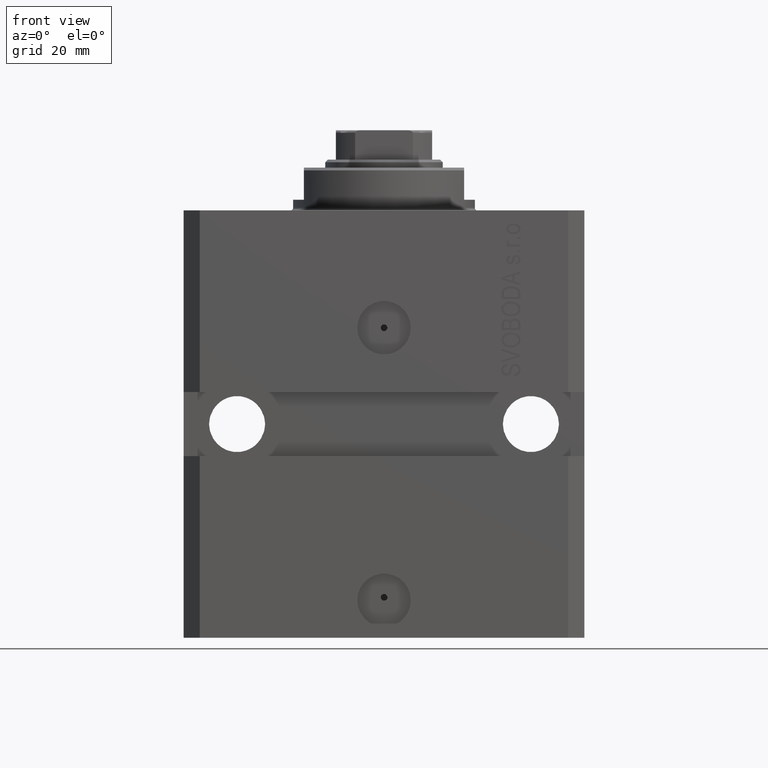
[diagram: clean part render]
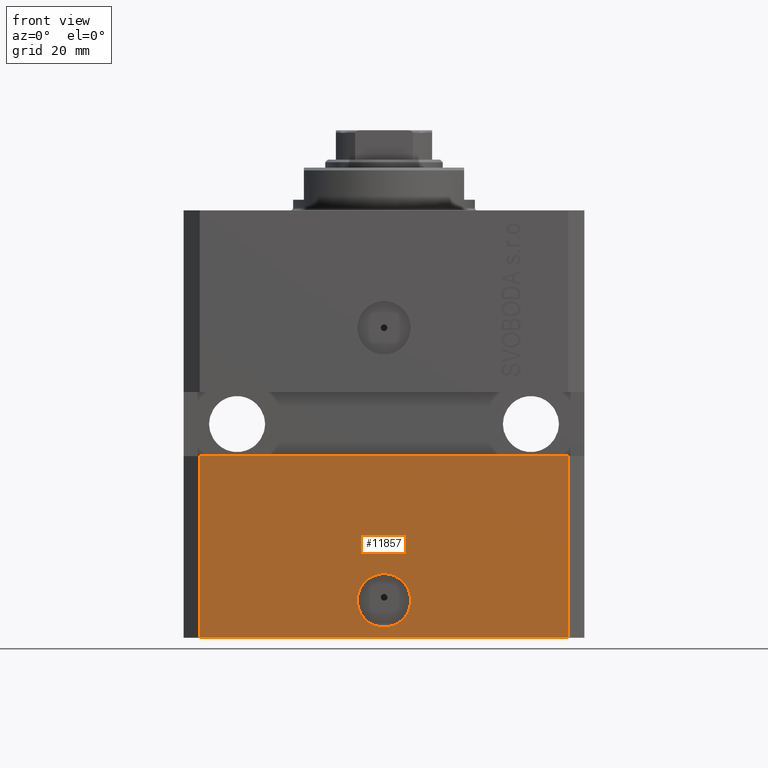
[diagram: same view with one face highlighted and labeled with its STEP entity id]
A machine part, front view. The second image highlights one B-rep face of the part: STEP entity #11857.
In plain terms, the highlighted planar face has unit normal (0, -1, 0).
Its self-contained STEP definition (entity closure, byte-faithful):
#287 = AXIS2_PLACEMENT_3D ( 'NONE', #23470, #2372, #5921 ) ;
#558 = EDGE_LOOP ( 'NONE', ( #33598, #41364, #21478, #35118 ) ) ;
#1639 = LINE ( 'NONE', #15839, #40513 ) ;
#2372 = DIRECTION ( 'NONE',  ( 1.176083712526788232E-16, -1.000000000000000000, 0.000000000000000000 ) ) ;
#3290 = CIRCLE ( 'NONE', #287, 5.000000000000006217 ) ;
#3434 = VERTEX_POINT ( 'NONE', #37248 ) ;
#4259 = AXIS2_PLACEMENT_3D ( 'NONE', #29597, #32456, #36235 ) ;
#4391 = VECTOR ( 'NONE', #45858, 1000.000000000000000 ) ;
#5921 = DIRECTION ( 'NONE',  ( 1.000000000000000000, 0.000000000000000000, 0.000000000000000000 ) ) ;
#6768 = FACE_BOUND ( 'NONE', #24987, .T. ) ;
#9656 = EDGE_CURVE ( 'NONE', #3434, #11176, #3290, .T. ) ;
#11176 = VERTEX_POINT ( 'NONE', #27540 ) ;
#11857 = ADVANCED_FACE ( 'NONE', ( #6768, #36098 ), #24531, .T. ) ;
#12793 = VECTOR ( 'NONE', #19223, 1000.000000000000000 ) ;
#12830 = VECTOR ( 'NONE', #39491, 1000.000000000000000 ) ;
#13266 = VERTEX_POINT ( 'NONE', #32007 ) ;
#15601 = DIRECTION ( 'NONE',  ( 0.000000000000000000, 0.000000000000000000, 1.000000000000000000 ) ) ;
#15839 = CARTESIAN_POINT ( 'NONE',  ( 34.49999999999999289, -27.49999999999999645, -80.00000000000000000 ) ) ;
#16453 = EDGE_CURVE ( 'NONE', #11176, #3434, #42823, .T. ) ;
#16966 = LINE ( 'NONE', #31400, #4391 ) ;
#17348 = VERTEX_POINT ( 'NONE', #27985 ) ;
#17836 = CARTESIAN_POINT ( 'NONE',  ( 34.49999999999999289, -27.49999999999999289, -46.00000000000000000 ) ) ;
#18095 = CARTESIAN_POINT ( 'NONE',  ( -34.49999999999998579, -27.49999999999999645, -80.00000000000000000 ) ) ;
#18289 = LINE ( 'NONE', #22788, #12793 ) ;
#18744 = EDGE_CURVE ( 'NONE', #17348, #22376, #1639, .T. ) ;
#19223 = DIRECTION ( 'NONE',  ( 1.000000000000000000, 9.251858538542972814E-17, 0.000000000000000000 ) ) ;
#19378 = ORIENTED_EDGE ( 'NONE', *, *, #9656, .F. ) ;
#21276 = LINE ( 'NONE', #25305, #12830 ) ;
#21478 = ORIENTED_EDGE ( 'NONE', *, *, #24211, .T. ) ;
#21688 = DIRECTION ( 'NONE',  ( 0.000000000000000000, -1.000000000000000000, 0.000000000000000000 ) ) ;
#22376 = VERTEX_POINT ( 'NONE', #17836 ) ;
#22788 = CARTESIAN_POINT ( 'NONE',  ( -37.50000000000000000, -27.50000000000000000, -46.00000000000000000 ) ) ;
#23470 = CARTESIAN_POINT ( 'NONE',  ( 0.000000000000000000, -27.49999999999999645, -73.00000000000000000 ) ) ;
#24211 = EDGE_CURVE ( 'NONE', #43192, #17348, #16966, .T. ) ;
#24531 = PLANE ( 'NONE',  #32838 ) ;
#24987 = EDGE_LOOP ( 'NONE', ( #31498, #19378 ) ) ;
#25305 = CARTESIAN_POINT ( 'NONE',  ( -34.49999999999998579, -27.49999999999999645, -80.00000000000000000 ) ) ;
#27540 = CARTESIAN_POINT ( 'NONE',  ( 5.000000000000006217, -27.49999999999999645, -73.00000000000000000 ) ) ;
#27985 = CARTESIAN_POINT ( 'NONE',  ( 34.49999999999999289, -27.49999999999999645, -80.00000000000000000 ) ) ;
#28777 = CARTESIAN_POINT ( 'NONE',  ( -34.49999999999998579, -27.49999999999999645, -80.00000000000000000 ) ) ;
#29597 = CARTESIAN_POINT ( 'NONE',  ( 0.000000000000000000, -27.49999999999999645, -73.00000000000000000 ) ) ;
#31400 = CARTESIAN_POINT ( 'NONE',  ( -34.49999999999998579, -27.49999999999999645, -80.00000000000000000 ) ) ;
#31498 = ORIENTED_EDGE ( 'NONE', *, *, #16453, .F. ) ;
#32007 = CARTESIAN_POINT ( 'NONE',  ( -34.49999999999998579, -27.50000000000000000, -46.00000000000000000 ) ) ;
#32456 = DIRECTION ( 'NONE',  ( 1.176083712526788232E-16, -1.000000000000000000, 0.000000000000000000 ) ) ;
#32838 = AXIS2_PLACEMENT_3D ( 'NONE', #28777, #21688, #46779 ) ;
#33598 = ORIENTED_EDGE ( 'NONE', *, *, #38992, .F. ) ;
#35118 = ORIENTED_EDGE ( 'NONE', *, *, #18744, .T. ) ;
#36098 = FACE_OUTER_BOUND ( 'NONE', #558, .T. ) ;
#36235 = DIRECTION ( 'NONE',  ( 1.000000000000000000, 0.000000000000000000, 0.000000000000000000 ) ) ;
#37248 = CARTESIAN_POINT ( 'NONE',  ( -5.000000000000006217, -27.49999999999999645, -73.00000000000000000 ) ) ;
#38992 = EDGE_CURVE ( 'NONE', #13266, #22376, #18289, .T. ) ;
#39491 = DIRECTION ( 'NONE',  ( 0.000000000000000000, 0.000000000000000000, 1.000000000000000000 ) ) ;
#40290 = EDGE_CURVE ( 'NONE', #43192, #13266, #21276, .T. ) ;
#40513 = VECTOR ( 'NONE', #15601, 1000.000000000000000 ) ;
#41364 = ORIENTED_EDGE ( 'NONE', *, *, #40290, .F. ) ;
#42823 = CIRCLE ( 'NONE', #4259, 5.000000000000006217 ) ;
#43192 = VERTEX_POINT ( 'NONE', #18095 ) ;
#45858 = DIRECTION ( 'NONE',  ( 1.000000000000000000, 0.000000000000000000, 0.000000000000000000 ) ) ;
#46779 = DIRECTION ( 'NONE',  ( 0.000000000000000000, -0.000000000000000000, -1.000000000000000000 ) ) ;